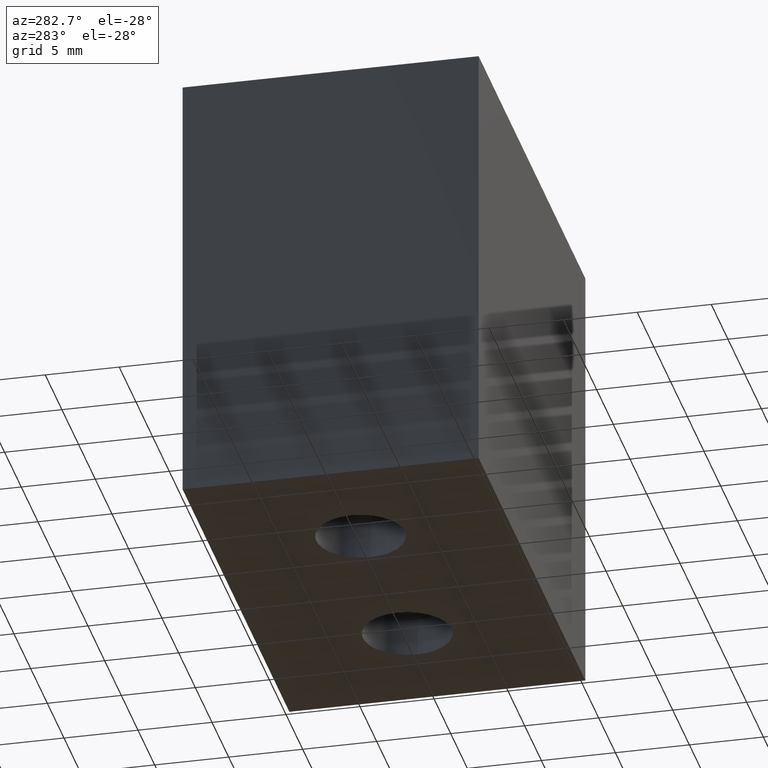
[diagram: clean part render]
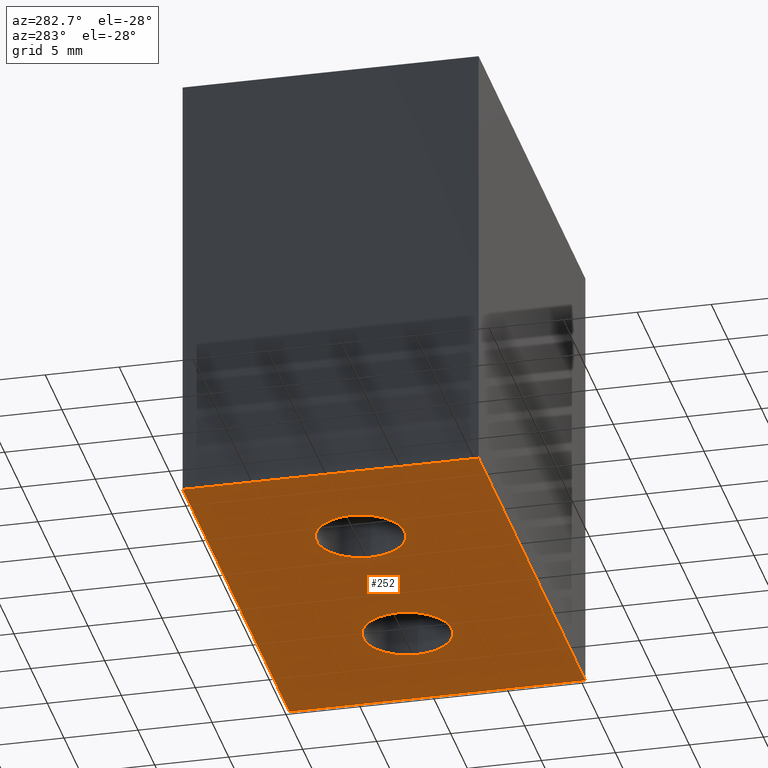
[diagram: same view with one face highlighted and labeled with its STEP entity id]
A machine part, auxiliary view. The second image highlights one B-rep face of the part: STEP entity #252.
In plain terms, the highlighted planar face has unit normal (0, 0, 1).
Its self-contained STEP definition (entity closure, byte-faithful):
#21=FACE_BOUND('',#71,.T.);
#22=FACE_BOUND('',#72,.T.);
#32=PLANE('',#303);
#48=FACE_OUTER_BOUND('',#70,.T.);
#70=EDGE_LOOP('',(#225,#226,#227,#228));
#71=EDGE_LOOP('',(#229));
#72=EDGE_LOOP('',(#230));
#79=LINE('',#424,#97);
#83=LINE('',#432,#101);
#86=LINE('',#438,#104);
#89=LINE('',#443,#107);
#97=VECTOR('',#358,10.);
#101=VECTOR('',#364,10.);
#104=VECTOR('',#369,10.);
#107=VECTOR('',#374,10.);
#109=CIRCLE('',#277,3.);
#112=CIRCLE('',#282,3.);
#121=VERTEX_POINT('',#382);
#124=VERTEX_POINT('',#391);
#133=VERTEX_POINT('',#422);
#134=VERTEX_POINT('',#423);
#137=VERTEX_POINT('',#431);
#139=VERTEX_POINT('',#437);
#141=EDGE_CURVE('',#121,#121,#109,.T.);
#145=EDGE_CURVE('',#124,#124,#112,.T.);
#159=EDGE_CURVE('',#133,#134,#79,.T.);
#163=EDGE_CURVE('',#137,#133,#83,.T.);
#166=EDGE_CURVE('',#139,#137,#86,.T.);
#169=EDGE_CURVE('',#134,#139,#89,.T.);
#225=ORIENTED_EDGE('',*,*,#169,.F.);
#226=ORIENTED_EDGE('',*,*,#159,.F.);
#227=ORIENTED_EDGE('',*,*,#163,.F.);
#228=ORIENTED_EDGE('',*,*,#166,.F.);
#229=ORIENTED_EDGE('',*,*,#141,.T.);
#230=ORIENTED_EDGE('',*,*,#145,.T.);
#252=ADVANCED_FACE('',(#48,#21,#22),#32,.F.);
#277=AXIS2_PLACEMENT_3D('',#383,#308,#309);
#282=AXIS2_PLACEMENT_3D('',#392,#319,#320);
#303=AXIS2_PLACEMENT_3D('',#446,#378,#379);
#308=DIRECTION('center_axis',(0.,0.,1.));
#309=DIRECTION('ref_axis',(-1.,0.,0.));
#319=DIRECTION('center_axis',(0.,0.,1.));
#320=DIRECTION('ref_axis',(-1.,0.,0.));
#358=DIRECTION('',(1.,-3.46944695195361E-17,0.));
#364=DIRECTION('',(2.22044604925031E-16,-1.,0.));
#369=DIRECTION('',(-1.,-1.04083408558608E-16,0.));
#374=DIRECTION('',(-4.44089209850063E-16,1.,0.));
#378=DIRECTION('center_axis',(0.,0.,1.));
#379=DIRECTION('ref_axis',(1.,0.,0.));
#382=CARTESIAN_POINT('',(-4.,-1.25362542679884E-15,0.));
#383=CARTESIAN_POINT('Origin',(-7.,-8.86231387054631E-16,0.));
#391=CARTESIAN_POINT('',(10.,4.96362351110204E-15,0.));
#392=CARTESIAN_POINT('Origin',(7.,5.33101755084625E-15,0.));
#422=CARTESIAN_POINT('',(-16.,-10.,0.));
#423=CARTESIAN_POINT('',(16.,-10.,0.));
#424=CARTESIAN_POINT('',(-16.,-10.,0.));
#431=CARTESIAN_POINT('',(-16.,10.,0.));
#432=CARTESIAN_POINT('',(-16.,10.,0.));
#437=CARTESIAN_POINT('',(16.,10.,0.));
#438=CARTESIAN_POINT('',(16.,10.,0.));
#443=CARTESIAN_POINT('',(16.,-10.,0.));
#446=CARTESIAN_POINT('Origin',(2.22044604925031E-15,2.22044604925031E-15,
0.));